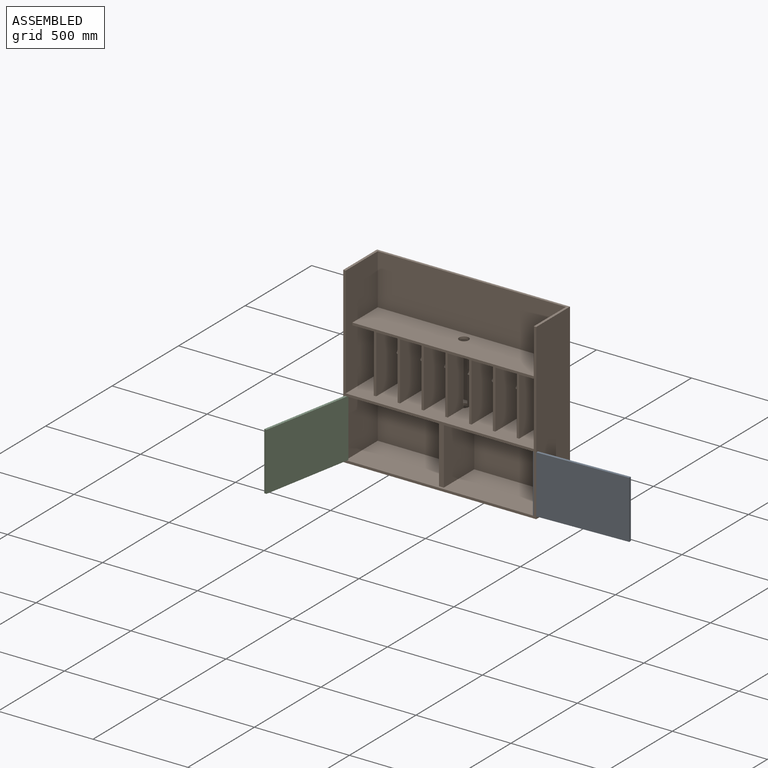
[diagram: assembled view]
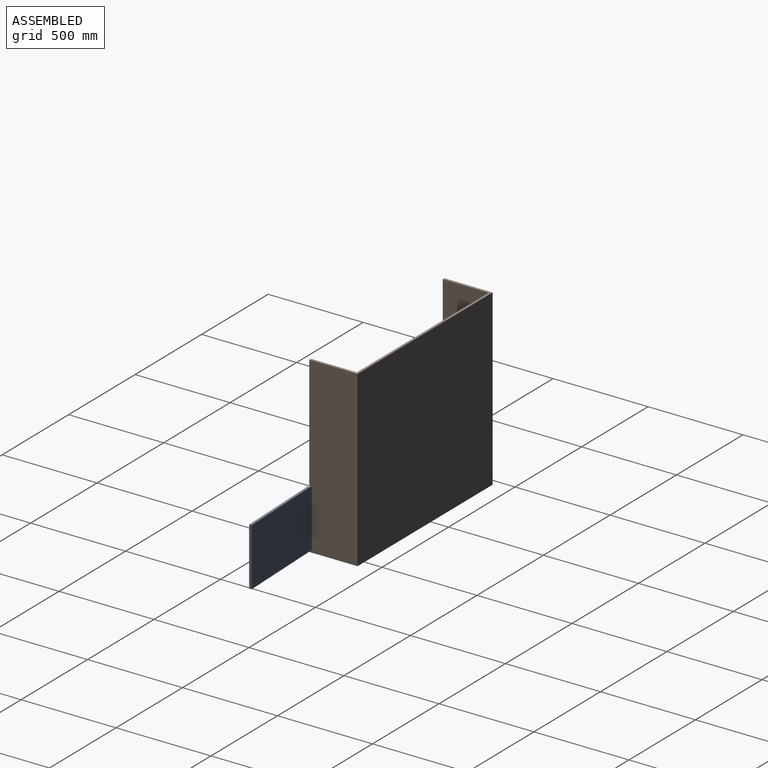
[diagram: assembled view, second angle]
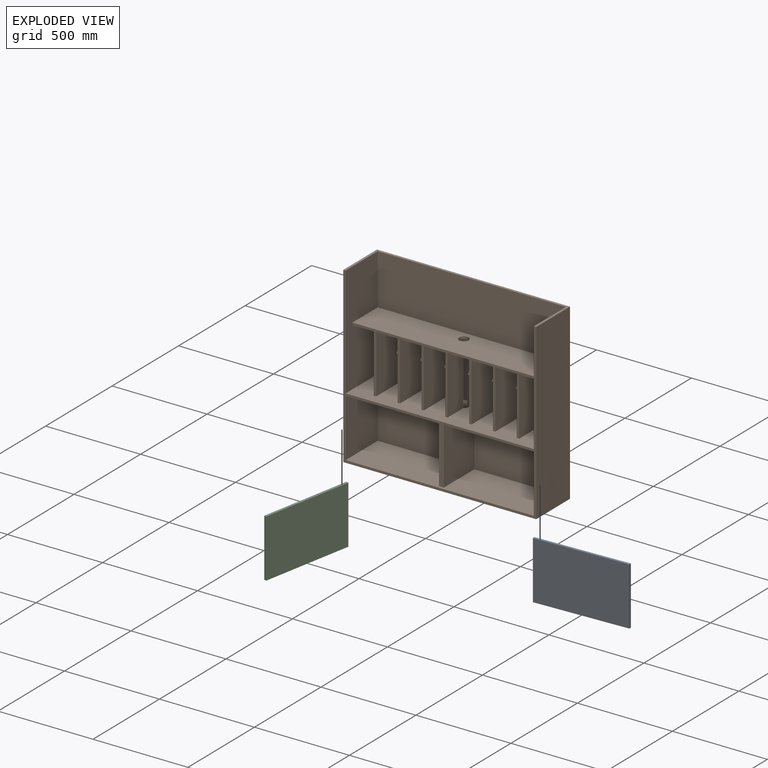
[diagram: exploded view]
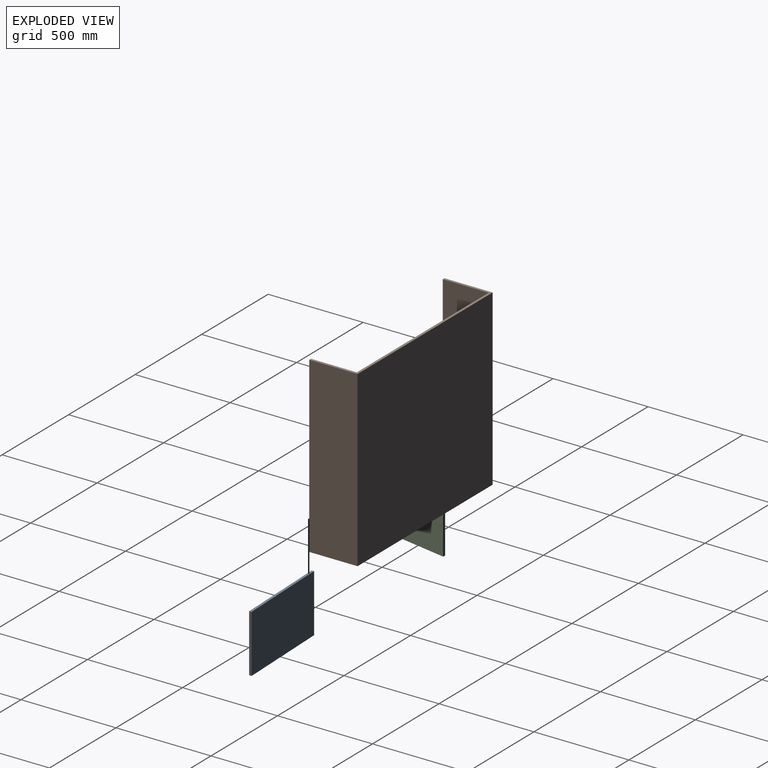
[diagram: exploded view, second angle]
ASSEMBLY  parts=3 mates=2
PART A: 7 faces, bbox 495.3x12.7x304.8 mm
  f0: plane 495.3x12.7mm, normal (0,0,1), area 6289mm2, adj f1,f3,f4,f5,f6
  f1: plane 304.8x12.7mm, normal (-1,0,0), area 3871mm2, adj f0,f2,f4,f5
  f2: plane 495.3x12.7mm, normal (0,0,-1), area 6289mm2, adj f1,f3,f4,f5,f6
  f3: plane 304.8x12.7mm, normal (1,0,0), area 3871mm2, adj f0,f2,f4,f5
  f4: plane 495.3x304.8mm, normal (0,1,0), area 150967.4mm2, adj f0,f1,f2,f3
  f5: plane 495.3x304.8mm, normal (0,-1,0), area 150967.4mm2, adj f0,f1,f2,f3
  f6: cylinder r=0.64mm len=304.8mm, axis (0,0,1), area 1216.1mm2, adj f0,f2
PART B: 63 faces, bbox 1016x254x914.4 mm
  f0: plane 990.6x241.3mm, normal (0,0,-1), area 233131.5mm2, adj f34,f35,f36,f42,f46,f47,f58,f59
  f1: plane 304.8x25.41mm, normal (-1,0,0), area 7489.9mm2, adj f17,f25,f45,f51,f58
  f2: plane 304.8x28.52mm, normal (1,0,0), area 8362.3mm2, adj f18,f24,f45,f51,f58
  f3: plane 304.8x190.5mm, normal (-1,0,0), area 57557.7mm2, adj f30,f33,f45,f50,f57
  f4: plane 304.8x190.5mm, normal (1,0,0), area 57557.7mm2, adj f28,f29,f45,f50,f57
  f5: plane 304.8x190.5mm, normal (-1,0,0), area 57557.7mm2, adj f28,f29,f45,f50,f56
  f6: plane 304.8x190.5mm, normal (1,0,0), area 57557.7mm2, adj f26,f27,f45,f50,f56
  f7: plane 304.8x190.5mm, normal (-1,0,0), area 57557.7mm2, adj f26,f27,f45,f50,f55
  f8: plane 304.8x190.5mm, normal (1,0,0), area 57557.7mm2, adj f17,f25,f45,f50,f55
  f9: plane 304.8x190.5mm, normal (-1,0,0), area 57557.7mm2, adj f18,f24,f45,f50,f54
  f10: plane 304.8x190.5mm, normal (1,0,0), area 57557.7mm2, adj f22,f23,f45,f50,f54
  f11: plane 304.8x190.5mm, normal (-1,0,0), area 57557.7mm2, adj f22,f23,f45,f50,f53
  f12: plane 304.8x190.5mm, normal (1,0,0), area 57557.7mm2, adj f20,f21,f45,f50,f53
  f13: plane 304.8x190.5mm, normal (-1,0,0), area 57557.7mm2, adj f20,f21,f45,f50,f52
  f14: plane 304.8x190.5mm, normal (1,0,0), area 57557.7mm2, adj f19,f45,f49,f50,f52
  f15: plane 304.8x114.31mm, normal (-1,0,0), area 34840.1mm2, adj f17,f45,f50,f58
  f16: plane 304.8x117.42mm, normal (1,0,0), area 35790.9mm2, adj f24,f45,f50,f58
  f17: plane 190.5x112.71mm, normal (0,0,-1), area 20483.5mm2, adj f1,f8,f15,f25,f50,f58
  f18: plane 304.8x112.71mm, normal (0,-1,0), area 34354.8mm2, adj f2,f9,f24,f45
  f19: plane 304.8x112.71mm, normal (0,-1,0), area 34354.8mm2, adj f14,f43,f45,f49
  f20: plane 190.5x112.71mm, normal (0,0,-1), area 21471.7mm2, adj f12,f13,f21,f50
  f21: plane 304.8x112.71mm, normal (0,-1,0), area 34354.8mm2, adj f12,f13,f20,f45
  f22: plane 190.5x112.71mm, normal (0,0,-1), area 21471.7mm2, adj f10,f11,f23,f50
  f23: plane 304.8x112.71mm, normal (0,-1,0), area 34354.8mm2, adj f10,f11,f22,f45
  f24: plane 190.5x112.71mm, normal (0,0,-1), area 21053.5mm2, adj f2,f9,f16,f18,f50,f58
  f25: plane 304.8x112.71mm, normal (0,-1,0), area 34354.8mm2, adj f1,f8,f17,f45
  f26: plane 190.5x112.71mm, normal (0,0,-1), area 21471.7mm2, adj f6,f7,f27,f50
  f27: plane 304.8x112.71mm, normal (0,-1,0), area 34354.8mm2, adj f6,f7,f26,f45
  f28: plane 190.5x112.71mm, normal (0,0,-1), area 21471.7mm2, adj f4,f5,f29,f50
  f29: plane 304.8x112.71mm, normal (0,-1,0), area 34354.8mm2, adj f4,f5,f28,f45
  f30: plane 190.5x112.71mm, normal (0,0,-1), area 21471.7mm2, adj f3,f32,f33,f50
  f31: plane 990.6x266.7mm, normal (0,-1,0), area 264193mm2, adj f32,f41,f43,f48
  f32: plane 584.2x241.3mm, normal (1,0,0), area 138548.1mm2, adj f30,f31,f33,f36,f41,f45,f48,f50
  f33: plane 304.8x112.71mm, normal (0,-1,0), area 34354.8mm2, adj f3,f30,f32,f45
  f34: plane 304.8x241.3mm, normal (1,0,0), area 73548.2mm2, adj f0,f36,f42,f44
  f35: plane 304.8x241.3mm, normal (-1,0,0), area 73548.2mm2, adj f0,f36,f42,f44
  f36: plane 1016x914.4mm, normal (0,-1,0), area 48387mm2, adj f0,f32,f34,f35,f38,f39,f40,f41
  f37: plane 1016x914.4mm, normal (0,1,0), area 929030.4mm2, adj f38,f39,f40,f41
  f38: plane 914.4x254mm, normal (-1,0,0), area 232257.6mm2, adj f36,f37,f40,f41
  f39: plane 914.4x254mm, normal (1,0,0), area 232257.6mm2, adj f36,f37,f40,f41
  f40: plane 1016x254mm, normal (0,0,-1), area 258064mm2, adj f36,f37,f38,f39
  f41: plane 1016x254mm, normal (0,0,1), area 19032.2mm2, adj f31,f32,f36,f37,f38,f39,f43
  f42: plane 990.6x304.8mm, normal (0,-1,0), area 296128.4mm2, adj f0,f34,f35,f44,f59,f60,f62
  f43: plane 584.2x241.3mm, normal (-1,0,0), area 138548.1mm2, adj f19,f31,f36,f41,f45,f48,f49,f50
  f44: plane 990.6x241.3mm, normal (0,0,1), area 233225.3mm2, adj f34,f35,f36,f42,f59,f60,f61
  f45: plane 990.6x241.3mm, normal (0,0,1), area 220687.4mm2, adj f1,f2,f3,f4,f5,f6,f7,f8
  f46: cylinder r=0.64mm len=12.7mm, axis (0,0,1), area 50.7mm2, adj f0,f45
  f47: cylinder r=0.64mm len=12.7mm, axis (0,0,1), area 50.7mm2, adj f0,f45
  f48: plane 990.6x190.5mm, normal (0,0,1), area 186682.5mm2, adj f31,f32,f43,f50,f58
  f49: plane 190.5x112.71mm, normal (0,0,-1), area 21471.7mm2, adj f14,f19,f43,f50
  f50: plane 990.6x317.5mm, normal (0,-1,0), area 39677.3mm2, adj f3,f4,f5,f6,f7,f8,f9,f10
  f51: cylinder r=12.7mm len=25.4mm, axis (1,0,0), area 531.6mm2, adj f1,f2,f58
  f52: cylinder r=12.7mm len=25.4mm, axis (1,0,0), area 1013.4mm2, adj f13,f14
  f53: cylinder r=12.7mm len=25.4mm, axis (1,0,0), area 1013.4mm2, adj f11,f12
  f54: cylinder r=12.7mm len=25.4mm, axis (1,0,0), area 1013.4mm2, adj f9,f10
  f55: cylinder r=12.7mm len=25.4mm, axis (1,0,0), area 1013.4mm2, adj f7,f8
  f56: cylinder r=12.7mm len=25.4mm, axis (1,0,0), area 1013.4mm2, adj f5,f6
  f57: cylinder r=12.7mm len=25.4mm, axis (1,0,0), area 1013.4mm2, adj f3,f4
  f58: cylinder r=25.4mm len=330.2mm, axis (0,0,1), area 11782.5mm2, adj f0,f1,f2,f15,f16,f17,f24,f45
  f59: plane 304.8x228.6mm, normal (-1,0,0), area 66774.1mm2, adj f0,f42,f44,f61,f62
  f60: plane 304.8x228.6mm, normal (1,0,0), area 66774.1mm2, adj f0,f42,f44,f61,f62
  f61: plane 304.8x25.4mm, normal (0,-1,0), area 7741.9mm2, adj f0,f44,f59,f60
  f62: plane 76.2x76.2mm, normal (0,0.71,0.71), area 2737.2mm2, adj f0,f42,f59,f60
PART C: 7 faces, bbox 495.3x12.7x304.8 mm
  f0: plane 495.3x12.7mm, normal (0,0,1), area 6289mm2, adj f1,f3,f4,f5,f6
  f1: plane 304.8x12.7mm, normal (-1,0,0), area 3871mm2, adj f0,f2,f4,f5
  f2: plane 495.3x12.7mm, normal (0,0,-1), area 6289mm2, adj f1,f3,f4,f5,f6
  f3: plane 304.8x12.7mm, normal (1,0,0), area 3871mm2, adj f0,f2,f4,f5
  f4: plane 495.3x304.8mm, normal (0,1,0), area 150967.4mm2, adj f0,f1,f2,f3
  f5: plane 495.3x304.8mm, normal (0,-1,0), area 150967.4mm2, adj f0,f1,f2,f3
  f6: cylinder r=0.64mm len=304.8mm, axis (0,0,1), area 1216.1mm2, adj f0,f2
PLACE A rot(axis=(0,0,-1),177.9deg) t=(397.74,-301.76,-505.87)mm
PLACE B t=(-195.31,-199.97,345.17)mm fixed
PLACE C rot(axis=(0,0,-1),100.6deg) t=(-718.95,-406.42,-534.28)mm
MATE revolute C.f6 <-> B.f46  axis (0,0,1) through (-694.78,-311.97,-251.73)mm
MATE revolute A.f6 <-> B.f47  axis (0,0,1) through (290.74,-311.97,-251.73)mm
